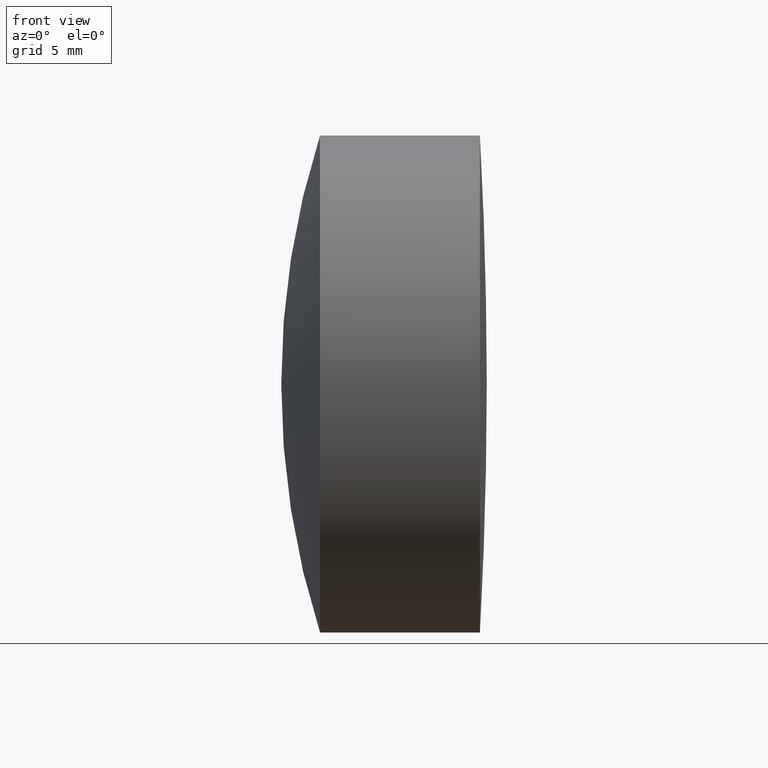
[diagram: clean part render]
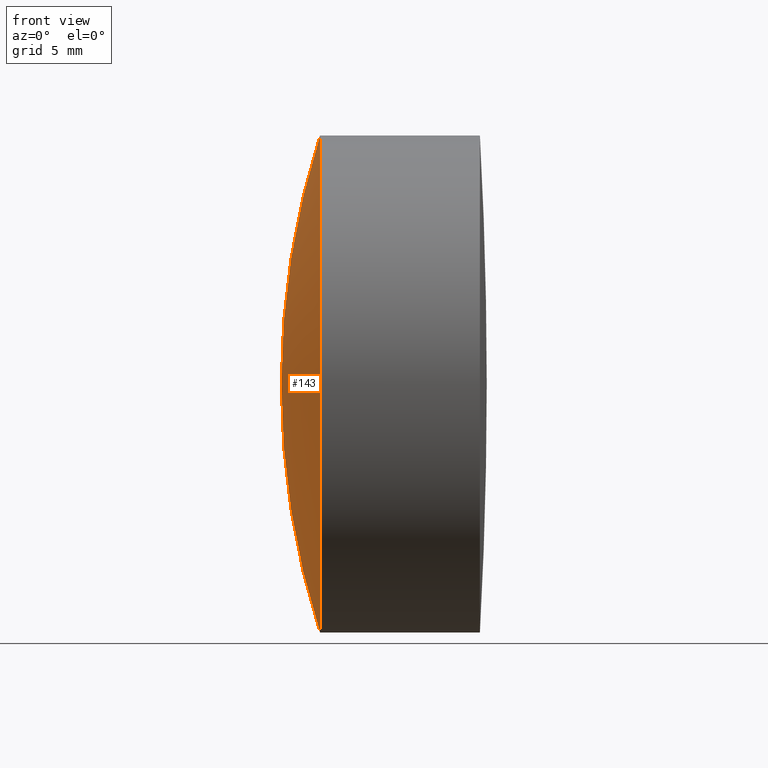
[diagram: same view with one face highlighted and labeled with its STEP entity id]
A machine part, front view. The second image highlights one B-rep face of the part: STEP entity #143.
In plain terms, the highlighted spherical surface has radius 41.7 mm.
Its self-contained STEP definition (entity closure, byte-faithful):
#20 = CARTESIAN_POINT ( 'NONE',  ( 270.6958458084194500, 0.0000000000000000000, -3.673513936803738400E-015 ) ) ;
#32 = AXIS2_PLACEMENT_3D ( 'NONE', #167, #140, #283 ) ;
#38 = DIRECTION ( 'NONE',  ( 0.0000000000000000000, 0.0000000000000000000, -1.000000000000000000 ) ) ;
#78 = EDGE_LOOP ( 'NONE', ( #212, #326, #236 ) ) ;
#83 = CIRCLE ( 'NONE', #116, 41.69999999999998900 ) ;
#88 = EDGE_CURVE ( 'NONE', #137, #310, #83, .T. ) ;
#96 = DIRECTION ( 'NONE',  ( -0.0000000000000000000, 1.000000000000000000, 1.224646799147353200E-016 ) ) ;
#102 = VERTEX_POINT ( 'NONE', #241 ) ;
#116 = AXIS2_PLACEMENT_3D ( 'NONE', #274, #96, #213 ) ;
#137 = VERTEX_POINT ( 'NONE', #138 ) ;
#138 = CARTESIAN_POINT ( 'NONE',  ( 230.9768327290389300, 1.555301434917137800E-015, -12.69999999999999800 ) ) ;
#140 = DIRECTION ( 'NONE',  ( -1.000000000000000000, -0.0000000000000000000, -0.0000000000000000000 ) ) ;
#143 = ADVANCED_FACE ( 'NONE', ( #230 ), #278, .T. ) ;
#162 = CARTESIAN_POINT ( 'NONE',  ( 270.6958458084194500, 0.0000000000000000000, -3.673513936803738400E-015 ) ) ;
#167 = CARTESIAN_POINT ( 'NONE',  ( 230.9768327290389300, 0.0000000000000000000, 0.0000000000000000000 ) ) ;
#170 = CIRCLE ( 'NONE', #32, 12.69999999999999600 ) ;
#186 = EDGE_CURVE ( 'NONE', #102, #310, #196, .T. ) ;
#196 = CIRCLE ( 'NONE', #268, 41.69999999999998900 ) ;
#212 = ORIENTED_EDGE ( 'NONE', *, *, #88, .F. ) ;
#213 = DIRECTION ( 'NONE',  ( 0.0000000000000000000, -1.224646799147353000E-016, 1.000000000000000000 ) ) ;
#216 = CARTESIAN_POINT ( 'NONE',  ( 228.9958458084194300, 0.0000000000000000000, -1.120125360581508200E-015 ) ) ;
#223 = DIRECTION ( 'NONE',  ( 0.0000000000000000000, 1.000000000000000000, 0.0000000000000000000 ) ) ;
#230 = FACE_OUTER_BOUND ( 'NONE', #78, .T. ) ;
#234 = AXIS2_PLACEMENT_3D ( 'NONE', #162, #223, #269 ) ;
#236 = ORIENTED_EDGE ( 'NONE', *, *, #186, .T. ) ;
#241 = CARTESIAN_POINT ( 'NONE',  ( 230.9768327290389300, 0.0000000000000000000, 12.69999999999999400 ) ) ;
#242 = EDGE_CURVE ( 'NONE', #137, #102, #170, .T. ) ;
#268 = AXIS2_PLACEMENT_3D ( 'NONE', #20, #338, #38 ) ;
#269 = DIRECTION ( 'NONE',  ( 0.0000000000000000000, 0.0000000000000000000, 1.000000000000000000 ) ) ;
#274 = CARTESIAN_POINT ( 'NONE',  ( 270.6958458084194500, 0.0000000000000000000, -3.673513936803738400E-015 ) ) ;
#278 = SPHERICAL_SURFACE ( 'NONE', #234, 41.69999999999998900 ) ;
#283 = DIRECTION ( 'NONE',  ( 0.0000000000000000000, 0.0000000000000000000, 1.000000000000000000 ) ) ;
#310 = VERTEX_POINT ( 'NONE', #216 ) ;
#326 = ORIENTED_EDGE ( 'NONE', *, *, #242, .T. ) ;
#338 = DIRECTION ( 'NONE',  ( 0.0000000000000000000, -1.000000000000000000, 0.0000000000000000000 ) ) ;